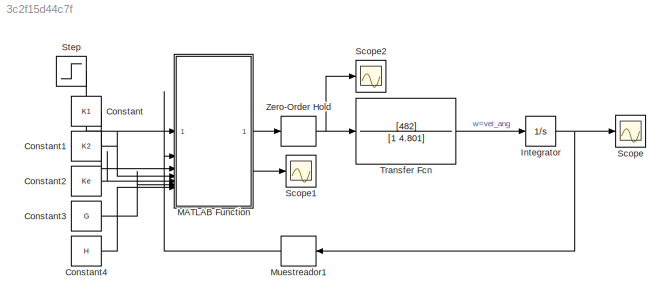
MODEL slx_3c2f15d44c7f
KIND model
CONFIG AbsTol = auto
CONFIG EnableMultiTasking = off
CONFIG FixedStep = auto
CONFIG MaxStep = auto
CONFIG MinStep = auto
CONFIG RelTol = 1e-3
CONFIG SampleTimeConstraint = Unconstrained
CONFIG SolverName = VariableStepAuto
CONFIG StartTime = 0.0
CONFIG StopTime = 10.0
BLOCK [Constant] Constant
  Value = K1
BLOCK [Constant] Constant1
  Value = K2
  VectorParams1D = off
BLOCK [Constant] Constant2
  Value = Ke
  VectorParams1D = off
BLOCK [Constant] Constant3
  Value = G
  VectorParams1D = off
BLOCK [Constant] Constant4
  Value = H
  VectorParams1D = off
BLOCK [Integrator] Integrator
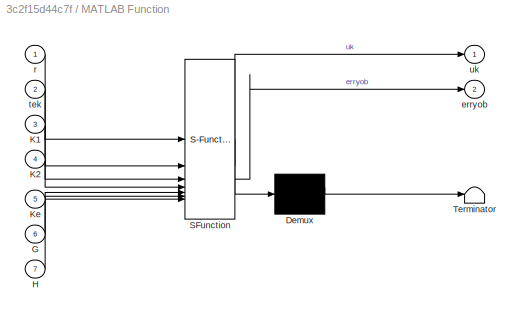
BLOCK [SubSystem] MATLAB Function
  ErrorFcn = Stateflow.Translate.translate
  PermitHierarchicalResolution = ExplicitOnly
  SFBlockType = MATLAB Function
  SystemSampleTime = T
  TreatAsAtomicUnit = on
BLOCK [Demux] MATLAB Function/ Demux 
  Outputs = 1
BLOCK [S-Function] MATLAB Function/ SFunction 
  EnableBusSupport = on
  FunctionName = sf_sfun
  PortCounts = [7 3]
  SFcnIsStateOwnerBlock = off
  SFunctionDeploymentMode = off
  Tag = Stateflow S-Function 2
BLOCK [Terminator] MATLAB Function/ Terminator 
BLOCK [Inport] MATLAB Function/G
  Port = 6
BLOCK [Inport] MATLAB Function/H
  Port = 7
BLOCK [Inport] MATLAB Function/K1
  Port = 3
BLOCK [Inport] MATLAB Function/K2
  Port = 4
BLOCK [Inport] MATLAB Function/Ke
  Port = 5
BLOCK [Outport] MATLAB Function/erryob
  Port = 2
BLOCK [Inport] MATLAB Function/r
BLOCK [Inport] MATLAB Function/tek
  Port = 2
BLOCK [Outport] MATLAB Function/uk
BLOCK [ZeroOrderHold] Muestreador1
  NameLocation = top
  SampleTime = T
BLOCK [Scope] Scope
  Floating = off
  NumInputPorts = 1
  ScopeSpecificationString = Simulink.scopes.TimeScopeBlockCfg('CurrentConfiguration', extmgr.ConfigurationSet(extmgr.Configuration('Core','General UI',true),extmgr.Configuration('Core','Source UI',true),extmgr.Configuration('Sources','WiredSimulink',true),extmgr.Configuration('Visuals','Time Domain',true,'SerializedDisplays',{struct('MinYLimReal','-13.06929','MaxYLimReal','117.62363','YLabelReal','','MinYLimMag','0.00000','M...<+1484ch>
BLOCK [Scope] Scope1
  Floating = off
  NumInputPorts = 1
  ScopeSpecificationString = Simulink.scopes.TimeScopeBlockCfg('CurrentConfiguration', extmgr.ConfigurationSet(extmgr.Configuration('Core','General UI',true),extmgr.Configuration('Core','Source UI',true),extmgr.Configuration('Sources','WiredSimulink',true,'DataLoggingVariableName','ScopeData1'),extmgr.Configuration('Visuals','Time Domain',true,'SerializedDisplays',{struct('MinYLimReal','-0.34753','MaxYLimReal','0.27697','YLab...<+1525ch>
BLOCK [Scope] Scope2
  Floating = off
  NumInputPorts = 1
  ScopeSpecificationString = Simulink.scopes.TimeScopeBlockCfg('CurrentConfiguration', extmgr.ConfigurationSet(extmgr.Configuration('Core','General UI',true),extmgr.Configuration('Core','Source UI',true),extmgr.Configuration('Sources','WiredSimulink',true,'DataLoggingVariableName','ScopeData2'),extmgr.Configuration('Visuals','Time Domain',true,'SerializedDisplays',{struct('MinYLimReal','-0.17164','MaxYLimReal','1.09227','YLab...<+1518ch>
BLOCK [Step] Step
  After = 100
  SampleTime = 0
  Time = 0
BLOCK [TransferFcn] Transfer Fcn
  Denominator = [1 4.801]
  Numerator = [482]
BLOCK [ZeroOrderHold] Zero-Order Hold
  SampleTime = T
LINE Constant1:1 -> MATLAB Function:4
LINE Constant2:1 -> MATLAB Function:5
LINE Constant3:1 -> MATLAB Function:6
LINE Constant4:1 -> MATLAB Function:7
LINE Constant:1 -> MATLAB Function:3
NET Integrator:1 -> Muestreador1:1, Scope:1
LINE MATLAB Function:1 -> Zero-Order Hold:1
LINE MATLAB Function:2 -> Scope1:1
LINE Muestreador1:1 -> MATLAB Function:2
LINE Step:1 -> MATLAB Function:1
LINE Transfer Fcn:1 -> Integrator:1
NET Zero-Order Hold:1 -> Scope2:1, Transfer Fcn:1
note: NET lines group one-source signal fan-out (src -> all destinations, sorted); 1:1 wires keep LINE
CHART MATLAB Function states=1 transitions=1
  STATE_LABEL 'eML_blk_kernel()'
  STATE_LABEL 'SCRIPT:\nfunction [uk, erryob] = fcn(r, tek, K1, K2, Ke, G, H)\n\npersistent vk_1;\npersistent xob;\n\nif isempty(vk_1)\n    vk_1 = 0;\n    xob = [0;0];\nend;\n\nC = [1 0];\nek = r-tek;\nvk = vk_1 + ek;\nuk = K1*vk - K2*xob;\n\n% xob_m = xob(k+1)\n% xob = xob(k)\n\nxob_m = G*xob + H*uk + Ke*(tek-C*xob)\nerryob = tek - C*xob;\n\nvk_1 = vk;\nxob = xob_m;'
CHART  states=0 transitions=0
